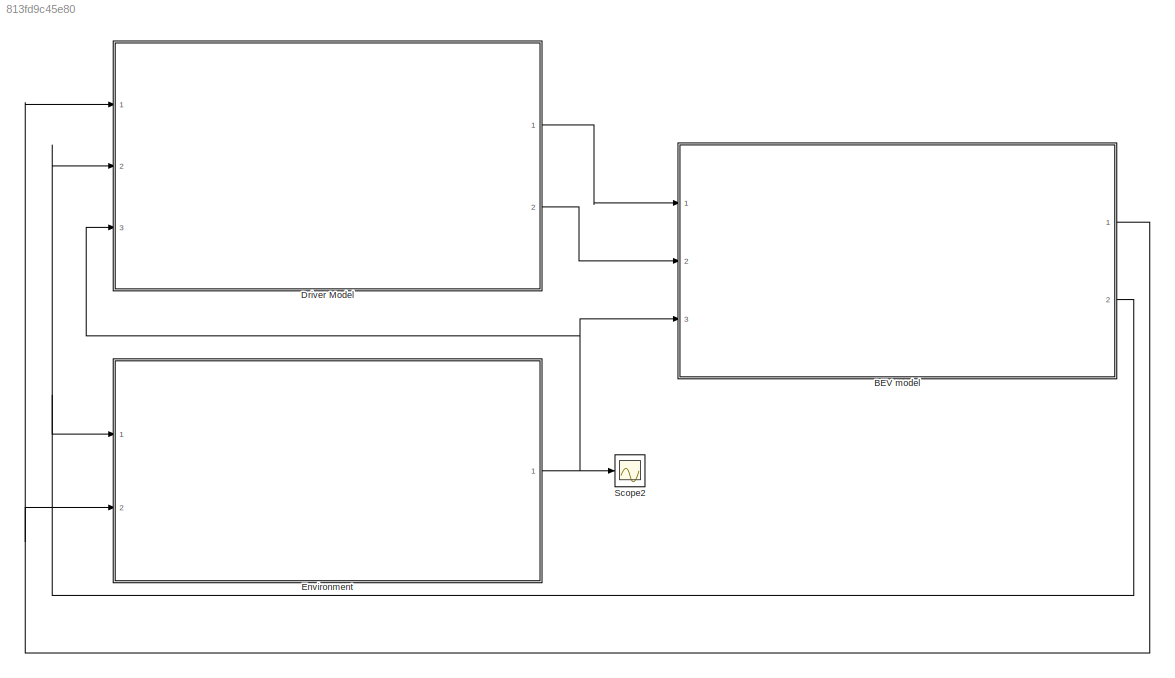
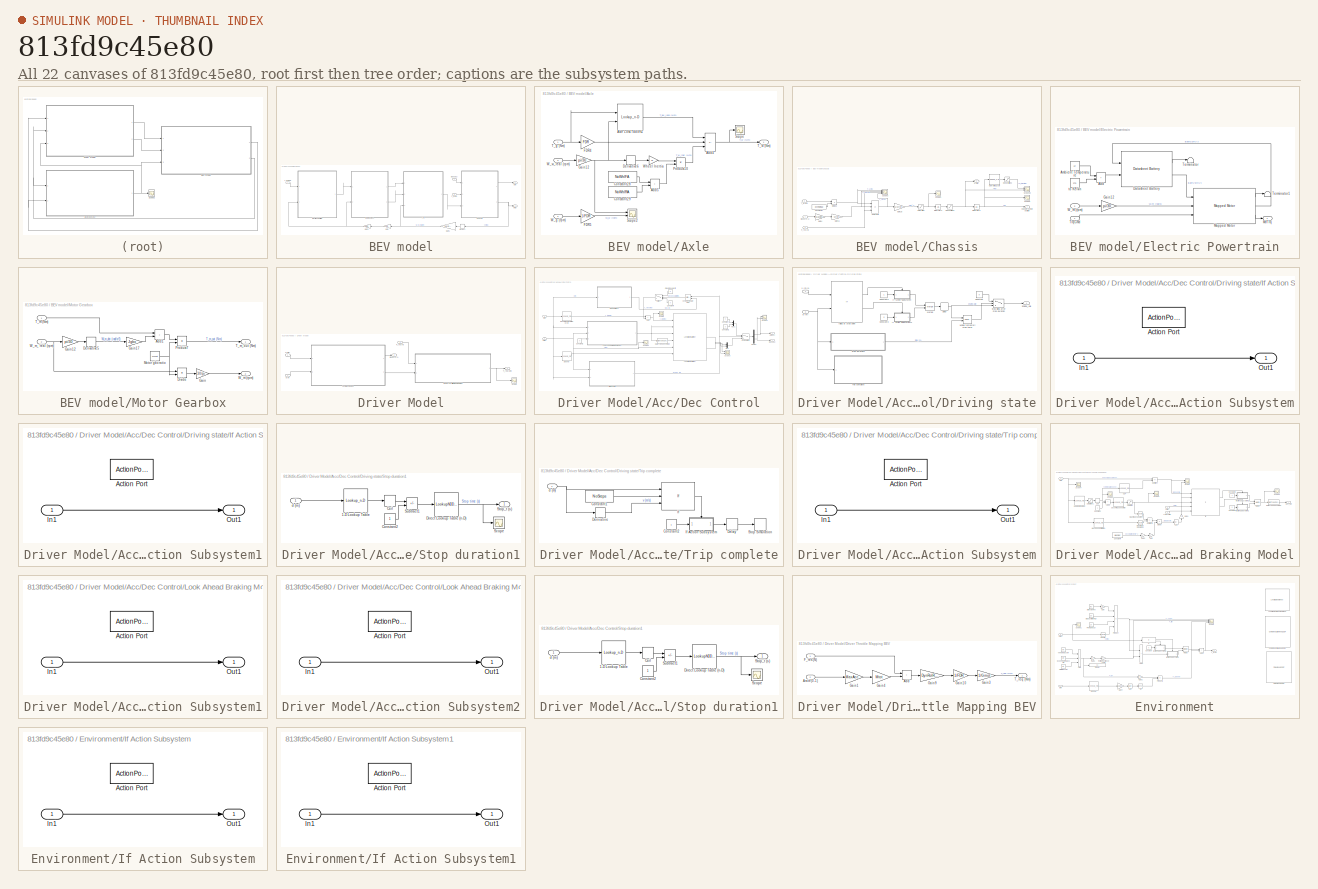
[diagram: thumbnail index - all 22 canvases of the model, root first then tree order]
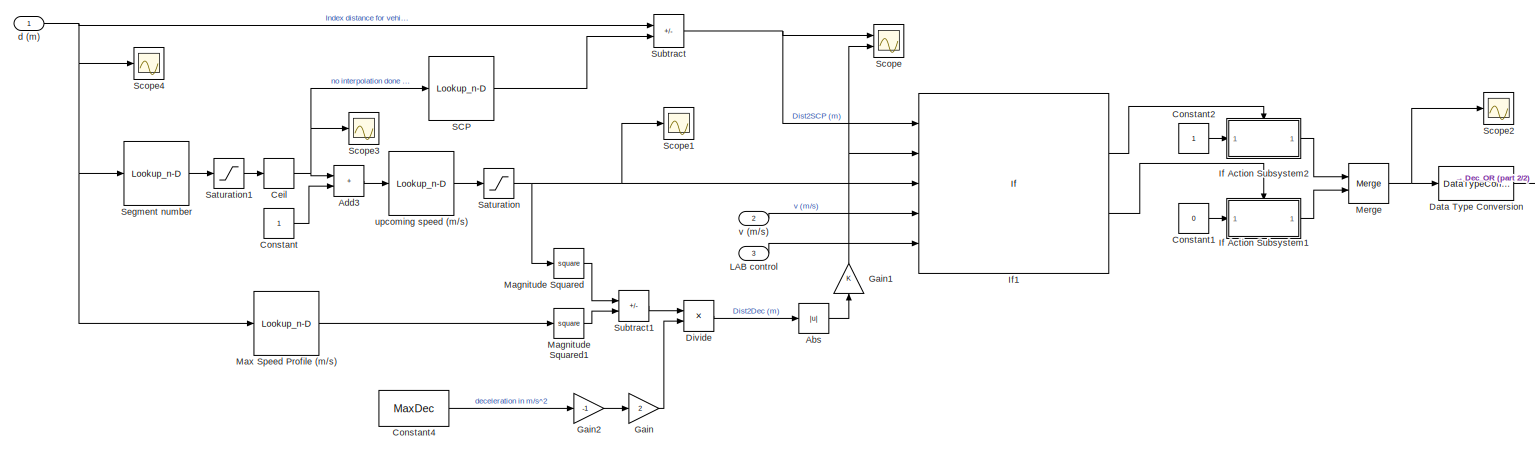
[diagram: Driver Model/Acc/Dec Control/Look Ahead Braking Model - part 1/2, most of the canvas]
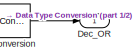
[diagram: Driver Model/Acc/Dec Control/Look Ahead Braking Model - part 2/2, middle right region]
MODEL slx_813fd9c45e80
KIND model
CONFIG AbsTol = auto
CONFIG EnableMultiTasking = off
CONFIG FixedStep = 0.1
CONFIG MaxStep = auto
CONFIG MinStep = auto
CONFIG RelTol = 1e-3
CONFIG SampleTimeConstraint = Unconstrained
CONFIG SolverName = FixedStepAuto
CONFIG StartTime = 0.0
CONFIG StopTime = 5000
BLOCK [SubSystem] BEV model
  Ports = [3, 2]
  RequestExecContextInheritance = off
BLOCK [SubSystem] BEV model/Axle
  Ports = [3, 1]
  RequestExecContextInheritance = off
BLOCK [Sum] BEV model/Axle/Add4
  IconShape = rectangular
  Inputs = -++
  Ports = [3, 1]
BLOCK [Sum] BEV model/Axle/Add5
  IconShape = rectangular
  Ports = [2, 1]
BLOCK [Lookup_n-D] BEV model/Axle/Axle Loss Tables1
  BreakpointsForDimension1 = ALInpTor
  BreakpointsForDimension2 = ALInpSpeed
  BreakpointsForDimension3 = GNo
  InputPortMap = u0,u1
  InternalRulePriority = Speed
  InterpMethod = Linear Lagrange
  Ports = [2, 1]
  RndMeth = Simplest
  Table = ALTableVal
BLOCK [Constant] BEV model/Axle/Constant28
  Value = NoWhlFA
BLOCK [Constant] BEV model/Axle/Constant29
  Value = NoWhlRA
BLOCK [Derivative] BEV model/Axle/Derivative6
BLOCK [Gain] BEV model/Axle/FDR4
  Gain = FDR
BLOCK [Gain] BEV model/Axle/FDR5
  Gain = 1/FDR
BLOCK [Gain] BEV model/Axle/Gain12
  Gain = pi/30
BLOCK [Product] BEV model/Axle/Product10
  Ports = [2, 1]
BLOCK [Scope] BEV model/Axle/Scope
  Floating = off
  NumInputPorts = 1
  Ports = [1]
  ScopeSpecificationString = Simulink.scopes.TimeScopeBlockCfg('CurrentConfiguration', extmgr.ConfigurationSet(extmgr.Configuration('Core','General UI',true),extmgr.Configuration('Core','Source UI',true),extmgr.Configuration('Sources','WiredSimulink',true,'DataLoggingVariableName','ScopeData11'),extmgr.Configuration('Visuals','Time Domain',true,'SerializedDisplays',{struct('MinYLimReal','-212034.84163','MaxYLimReal','170788.4...<+1477ch>
BLOCK [Scope] BEV model/Axle/Scope2
  Floating = off
  NumInputPorts = 2
  Ports = [2]
  ScopeSpecificationString = Simulink.scopes.TimeScopeBlockCfg('CurrentConfiguration', extmgr.ConfigurationSet(extmgr.Configuration('Core','General UI',true),extmgr.Configuration('Core','Source UI',true),extmgr.Configuration('Sources','WiredSimulink',true,'DataLoggingVariableName','ScopeData6'),extmgr.Configuration('Visuals','Time Domain',true,'SerializedDisplays',{struct('MinYLimReal','-58.24303','MaxYLimReal','524.18726','Y...<+1517ch>
BLOCK [Inport] BEV model/Axle/T_g (Nm)
BLOCK [Outport] BEV model/Axle/T_w (Nm)
BLOCK [Inport] BEV model/Axle/W_g (rpm)
  Port = 2
BLOCK [Inport] BEV model/Axle/W_w_real (rpm)
  Port = 3
BLOCK [Gain] BEV model/Axle/Wheel Inertia
  Gain = Jk
BLOCK [Inport] BEV model/Bpos (0-1)
  Port = 2
BLOCK [SubSystem] BEV model/Chassis
  Ports = [3, 2]
  RequestExecContextInheritance = off
BLOCK [Inport] BEV model/Chassis/Bpos (0-1)
BLOCK [Constant] BEV model/Chassis/Constant27
  Value = DynRolRad
BLOCK [Product] BEV model/Chassis/Divide2
  Inputs = */
  Ports = [2, 1]
BLOCK [Inport] BEV model/Chassis/F_res (N)
  Port = 2
BLOCK [Gain] BEV model/Chassis/Gain11
  Gain = -Mtot
BLOCK [Gain] BEV model/Chassis/Gain18
  Gain = 1/Mtot
BLOCK [Gain] BEV model/Chassis/Gain4
  Gain = MaxDec
BLOCK [Outport] BEV model/Chassis/Index for vehicle position
BLOCK [Integrator] BEV model/Chassis/Integrator2
  ContinuousStateAttributes = 'acceleration'
  Ports = [1, 1]
BLOCK [Integrator] BEV model/Chassis/Integrator5
  ContinuousStateAttributes = 'velocity'
  Ports = [1, 1]
BLOCK [Saturate] BEV model/Chassis/Only positive1
  LowerLimit = 0
  UpperLimit = inf
BLOCK [Saturate] BEV model/Chassis/Only positive2
  LowerLimit = 0
  UpperLimit = inf
BLOCK [Lookup_n-D] BEV model/Chassis/Operating Cycle
  BreakpointsForDimension1 = Dist
  BreakpointsForDimension2 = G1Inprpm
  InputPortMap = u0
  InternalRulePriority = Speed
  InterpMethod = Linear Lagrange
  NumberOfTableDimensions = 1
  Ports = [1, 1]
  RndMeth = Simplest
  Table = MaxSpeedProfile
BLOCK [Saturate] BEV model/Chassis/Saturation
  LowerLimit = -(MaxDec)
  UpperLimit = MaxAcc
BLOCK [Scope] BEV model/Chassis/Scope1
  Floating = off
  NumInputPorts = 1
  Ports = [1]
  ScopeSpecificationString = Simulink.scopes.TimeScopeBlockCfg('CurrentConfiguration', extmgr.ConfigurationSet(extmgr.Configuration('Core','General UI',true),extmgr.Configuration('Core','Source UI',true),extmgr.Configuration('Sources','WiredSimulink',true,'DataLoggingVariableName','ScopeData2'),extmgr.Configuration('Visuals','Time Domain',true,'SerializedDisplays',{struct('MinYLimReal','-1.875','MaxYLimReal','1.875','YLabelRe...<+1463ch>
BLOCK [Scope] BEV model/Chassis/Scope3
  Floating = off
  NumInputPorts = 4
  Ports = [4]
  ScopeSpecificationString = Simulink.scopes.TimeScopeBlockCfg('CurrentConfiguration', extmgr.ConfigurationSet(extmgr.Configuration('Core','General UI',true),extmgr.Configuration('Core','Source UI',true),extmgr.Configuration('Sources','WiredSimulink',true,'DataLoggingVariableName','ScopeData5'),extmgr.Configuration('Visuals','Time Domain',true,'SerializedDisplays',{struct('MinYLimReal','-199477.74057','MaxYLimReal','53849.764...<+1607ch>
BLOCK [Scope] BEV model/Chassis/Scope30
  Floating = off
  NumInputPorts = 2
  Ports = [2]
  ScopeSpecificationString = Simulink.scopes.TimeScopeBlockCfg('CurrentConfiguration', extmgr.ConfigurationSet(extmgr.Configuration('Core','General UI',true),extmgr.Configuration('Core','Source UI',true),extmgr.Configuration('Sources','WiredSimulink',true,'DataLoggingVariableName','ScopeData16'),extmgr.Configuration('Visuals','Time Domain',true,'SerializedDisplays',{struct('MinYLimReal','-1.04167','MaxYLimReal','9.375','YLabe...<+1490ch>
BLOCK [Scope] BEV model/Chassis/Scope5
  Floating = off
  NumInputPorts = 1
  Ports = [1]
  ScopeSpecificationString = Simulink.scopes.TimeScopeBlockCfg('CurrentConfiguration', extmgr.ConfigurationSet(extmgr.Configuration('Core','General UI',true),extmgr.Configuration('Core','Source UI',true),extmgr.Configuration('Sources','WiredSimulink',true,'DataLoggingVariableName','ScopeData2'),extmgr.Configuration('Visuals','Time Domain',true,'SerializedDisplays',{struct('MinYLimReal','-0.00675','MaxYLimReal','0.06074','YLab...<+1460ch>
BLOCK [Sum] BEV model/Chassis/Subtract8
  IconShape = rectangular
  Inputs = ++-
  Ports = [3, 1]
BLOCK [Inport] BEV model/Chassis/T_w (Nm)
  Port = 3
BLOCK [Outport] BEV model/Chassis/v (m//s)
  NameLocation = top
  Port = 2
BLOCK [SubSystem] BEV model/Electric Powertrain
  Ports = [2, 1]
  RequestExecContextInheritance = off
BLOCK [Sum] BEV model/Electric Powertrain/Add
  IconShape = rectangular
  Ports = [2, 1]
BLOCK [Constant] BEV model/Electric Powertrain/Ambient Temperature
  Value = 27
BLOCK [Reference] BEV model/Electric Powertrain/Datasheet Battery  REF=autolibdatasheetbattery/Datasheet Battery
  Ports = [2, 2]
  SourceBlock = autolibdatasheetbattery/Datasheet Battery
  SourceProductBaseCode = PW
  SourceType = Datasheet Battery
BLOCK [Gain] BEV model/Electric Powertrain/Gain12
  Gain = pi/30
BLOCK [Reference] BEV model/Electric Powertrain/Mapped Motor  REF=autolibmappedmotor/Mapped Motor
  Ports = [3, 3]
  SourceBlock = autolibmappedmotor/Mapped Motor
  SourceProductBaseCode = PW,MT,UV,VE,VP
  SourceType = MappedMotor
BLOCK [Outport] BEV model/Electric Powertrain/MtrTrq
BLOCK [Terminator] BEV model/Electric Powertrain/Terminator
BLOCK [Terminator] BEV model/Electric Powertrain/Terminator1
BLOCK [Inport] BEV model/Electric Powertrain/TrqCmd
BLOCK [Inport] BEV model/Electric Powertrain/W_m (rpm)
  NameLocation = top
  Port = 2
BLOCK [Constant] BEV model/Electric Powertrain/to Kelvin
  Value = 273
BLOCK [Inport] BEV model/F_res (N)
  Port = 3
BLOCK [Gain] BEV model/Gain
  Gain = FDR
  NameLocation = top
BLOCK [Gain] BEV model/Gain1
  Gain = 30/(pi*DynRolRad)
  NameLocation = top
BLOCK [Gain] BEV model/Gain2
  Gain = Gmot
  NameLocation = top
BLOCK [Memory] BEV model/Memory1
  NameLocation = top
BLOCK [SubSystem] BEV model/Motor Gearbox
  Ports = [2, 2]
  RequestExecContextInheritance = off
BLOCK [Sum] BEV model/Motor Gearbox/Add1
  IconShape = rectangular
  Ports = [2, 1]
BLOCK [Derivative] BEV model/Motor Gearbox/Derivative5
BLOCK [Product] BEV model/Motor Gearbox/Divide
  Inputs = */
  Ports = [2, 1]
BLOCK [Gain] BEV model/Motor Gearbox/Gain
  Gain = 30/pi
BLOCK [Gain] BEV model/Motor Gearbox/Gain12
  Gain = pi/30
BLOCK [Gain] BEV model/Motor Gearbox/Gain17
  Gain = Jgbx
BLOCK [Constant] BEV model/Motor Gearbox/Motor gbx ratio
  Value = Gmot
BLOCK [Product] BEV model/Motor Gearbox/Product7
  Ports = [2, 1]
BLOCK [Inport] BEV model/Motor Gearbox/T_m (Nm)
BLOCK [Outport] BEV model/Motor Gearbox/T_m_out (Nm)
BLOCK [Outport] BEV model/Motor Gearbox/W_m (rpm)
  Port = 2
BLOCK [Inport] BEV model/Motor Gearbox/W_m_ real (rpm)
  Port = 2
BLOCK [Inport] BEV model/T_req (Nm)
BLOCK [Outport] BEV model/d (m)
  Port = 2
BLOCK [Outport] BEV model/v (m//s)
BLOCK [SubSystem] Driver Model
  Ports = [3, 2]
  RequestExecContextInheritance = off
BLOCK [SubSystem] Driver Model/Acc//Dec Control
  Ports = [2, 2]
  RequestExecContextInheritance = off
BLOCK [Sum] Driver Model/Acc//Dec Control/Add
  IconShape = rectangular
  Ports = [2, 1]
BLOCK [Outport] Driver Model/Acc//Dec Control/Arate(0-1)
  Port = 2
BLOCK [Outport] Driver Model/Acc//Dec Control/Bpos (0-1)
BLOCK [Constant] Driver Model/Acc//Dec Control/Constant
  Value = 0
BLOCK [Constant] Driver Model/Acc//Dec Control/Constant1
  Value = 0
BLOCK [Constant] Driver Model/Acc//Dec Control/Constant2
  Value = 0
BLOCK [Constant] Driver Model/Acc//Dec Control/Constant4
  Commented = on
  NameLocation = top
  Value = 0
BLOCK [Constant] Driver Model/Acc//Dec Control/Creeping Velocity
  Commented = on
  NameLocation = top
  Value = 5
BLOCK [DataTypeConversion] Driver Model/Acc//Dec Control/Data Type Conversion
  OutDataTypeStr = double
  RndMeth = Floor
  SaturateOnIntegerOverflow = off
BLOCK [Demux] Driver Model/Acc//Dec Control/Demux
  Outputs = 2
  Ports = [1, 2]
BLOCK [SubSystem] Driver Model/Acc//Dec Control/Driving state
  Ports = [2, 1]
  RequestExecContextInheritance = off
BLOCK [Constant] Driver Model/Acc//Dec Control/Driving state/Constant
  Value = 0
BLOCK [Constant] Driver Model/Acc//Dec Control/Driving state/Constant2
BLOCK [Constant] Driver Model/Acc//Dec Control/Driving state/Constant3
  Value = 0
BLOCK [Delay] Driver Model/Acc//Dec Control/Driving state/Delay
  DelayLength = 1
  InputPortMap = u0
  Ports = [1, 1]
BLOCK [Outport] Driver Model/Acc//Dec Control/Driving state/Engine_Idle
BLOCK [If] Driver Model/Acc//Dec Control/Driving state/Idling at stop point
  IfExpression = u1 == 0 & u2 > 0
  NumInputs = 2
  Ports = [2, 2]
BLOCK [SubSystem] Driver Model/Acc//Dec Control/Driving state/If Action Subsystem
  Ports = [1, 1, 0, 0, 0, 0, 0, 1]
  RequestExecContextInheritance = off
  TreatAsAtomicUnit = on
BLOCK [ActionPort] Driver Model/Acc//Dec Control/Driving state/If Action Subsystem/Action Port
  ActionPortLabel = if(u1 == 0 & u2 > 0)
BLOCK [Inport] Driver Model/Acc//Dec Control/Driving state/If Action Subsystem/In1
BLOCK [Outport] Driver Model/Acc//Dec Control/Driving state/If Action Subsystem/Out1
BLOCK [SubSystem] Driver Model/Acc//Dec Control/Driving state/If Action Subsystem1
  Ports = [1, 1, 0, 0, 0, 0, 0, 1]
  RequestExecContextInheritance = off
  TreatAsAtomicUnit = on
BLOCK [ActionPort] Driver Model/Acc//Dec Control/Driving state/If Action Subsystem1/Action Port
  ActionPortLabel = else
BLOCK [Inport] Driver Model/Acc//Dec Control/Driving state/If Action Subsystem1/In1
BLOCK [Outport] Driver Model/Acc//Dec Control/Driving state/If Action Subsystem1/Out1
BLOCK [Merge] Driver Model/Acc//Dec Control/Driving state/Merge
  Ports = [2, 1]
BLOCK [SubSystem] Driver Model/Acc//Dec Control/Driving state/Stop duration1
  Ports = [1, 1]
  RequestExecContextInheritance = off
BLOCK [Lookup_n-D] Driver Model/Acc//Dec Control/Driving state/Stop duration1/1-D Lookup Table
  BreakpointsForDimension1 = Stoptimes(:,1)
  InputPortMap = u0
  InternalRulePriority = Speed
  NumberOfTableDimensions = 1
  Ports = [1, 1]
  RndMeth = Simplest
  Table = 1:length(Stoptimes)
BLOCK [Rounding] Driver Model/Acc//Dec Control/Driving state/Stop duration1/Ceil
  Operator = ceil
BLOCK [Constant] Driver Model/Acc//Dec Control/Driving state/Stop duration1/Constant2
BLOCK [LookupNDDirect] Driver Model/Acc//Dec Control/Driving state/Stop duration1/Direct Lookup Table (n-D)
  NumberOfTableDimensions = 1
  Ports = [1, 1]
  Table = Stoptimes(:,2)
BLOCK [Scope] Driver Model/Acc//Dec Control/Driving state/Stop duration1/Scope
  Floating = off
  NumInputPorts = 1
  Ports = [1]
  ScopeSpecificationString = Simulink.scopes.TimeScopeBlockCfg('CurrentConfiguration', extmgr.ConfigurationSet(extmgr.Configuration('Core','General UI',true),extmgr.Configuration('Core','Source UI',true),extmgr.Configuration('Sources','WiredSimulink',true,'DataLoggingVariableName','ScopeData1'),extmgr.Configuration('Visuals','Time Domain',true,'SerializedDisplays',{struct('MinYLimReal','4.00000','MaxYLimReal','6.00000','YLabe...<+1399ch>
BLOCK [Outport] Driver Model/Acc//Dec Control/Driving state/Stop duration1/Stop_t (s)
BLOCK [Sum] Driver Model/Acc//Dec Control/Driving state/Stop duration1/Subtract1
  IconShape = rectangular
  Inputs = +-
  Ports = [2, 1]
BLOCK [Inport] Driver Model/Acc//Dec Control/Driving state/Stop duration1/d (m)
BLOCK [Switch] Driver Model/Acc//Dec Control/Driving state/Stop idling after stop duration
  Criteria = u2 > Threshold
  InputSameDT = off
  SaturateOnIntegerOverflow = off
BLOCK [SubSystem] Driver Model/Acc//Dec Control/Driving state/Trip complete
  Ports = [1]
  RequestExecContextInheritance = off
BLOCK [Constant] Driver Model/Acc//Dec Control/Driving state/Trip complete/Constant1
  Value = NoSteps
BLOCK [Constant] Driver Model/Acc//Dec Control/Driving state/Trip complete/Constant2
BLOCK [Delay] Driver Model/Acc//Dec Control/Driving state/Trip complete/Delay
  DelayLength = 1
  InputPortMap = u0
  Ports = [1, 1]
BLOCK [Derivative] Driver Model/Acc//Dec Control/Driving state/Trip complete/Derivative
BLOCK [If] Driver Model/Acc//Dec Control/Driving state/Trip complete/If
  IfExpression = u1 > u2 & u3 ==0
  NumInputs = 3
  Ports = [3, 1]
  ShowElse = off
BLOCK [SubSystem] Driver Model/Acc//Dec Control/Driving state/Trip complete/If Action Subsystem
  Ports = [1, 1, 0, 0, 0, 0, 0, 1]
  RequestExecContextInheritance = off
  TreatAsAtomicUnit = on
BLOCK [ActionPort] Driver Model/Acc//Dec Control/Driving state/Trip complete/If Action Subsystem/Action Port
  ActionPortLabel = if(u1 > u2 & u3 ==0)
BLOCK [Inport] Driver Model/Acc//Dec Control/Driving state/Trip complete/If Action Subsystem/In1
BLOCK [Outport] Driver Model/Acc//Dec Control/Driving state/Trip complete/If Action Subsystem/Out1
BLOCK [Stop] Driver Model/Acc//Dec Control/Driving state/Trip complete/Stop Simulation
BLOCK [Inport] Driver Model/Acc//Dec Control/Driving state/Trip complete/d (m)
BLOCK [VariableTransportDelay] Driver Model/Acc//Dec Control/Driving state/Vehicle temporary stop timer
  MaximumDelay = 10
  NameLocation = top
  Ports = [2, 1]
  VariableDelayType = Variable transport delay
BLOCK [Inport] Driver Model/Acc//Dec Control/Driving state/d (m)
  Port = 2
BLOCK [Inport] Driver Model/Acc//Dec Control/Driving state/v (m//s)
BLOCK [Switch] Driver Model/Acc//Dec Control/Engine Idling
  Criteria = u2 > Threshold
  InputSameDT = off
  SaturateOnIntegerOverflow = off
BLOCK [Lookup_n-D] Driver Model/Acc//Dec Control/Generated Operating Cycle
  BreakpointsForDimension1 = Dist
  BreakpointsForDimension2 = G1Inprpm
  InputPortMap = u0
  InternalRulePriority = Speed
  InterpMethod = Linear Lagrange
  NumberOfTableDimensions = 1
  Ports = [1, 1]
  RndMeth = Simplest
  Table = MaxSpeedProfile
BLOCK [Reference] Driver Model/Acc//Dec Control/Longitudinal Driver  REF=autolibshared/Longitudinal Driver
  Ports = [6, 3]
  SourceBlock = autolibshared/Longitudinal Driver
  SourceProductBaseCode = PW,MT,UV,VE,VP
  SourceType = Longitudinal Driver
BLOCK [SubSystem] Driver Model/Acc//Dec Control/Look Ahead Braking Model
  Ports = [3, 1]
  RequestExecContextInheritance = off
BLOCK [Abs] Driver Model/Acc//Dec Control/Look Ahead Braking Model/Abs
  SaturateOnIntegerOverflow = off
BLOCK [Sum] Driver Model/Acc//Dec Control/Look Ahead Braking Model/Add3
  IconShape = rectangular
  Ports = [2, 1]
BLOCK [Rounding] Driver Model/Acc//Dec Control/Look Ahead Braking Model/Ceil
  Operator = ceil
BLOCK [Constant] Driver Model/Acc//Dec Control/Look Ahead Braking Model/Constant
BLOCK [Constant] Driver Model/Acc//Dec Control/Look Ahead Braking Model/Constant1
  Value = 0
BLOCK [Constant] Driver Model/Acc//Dec Control/Look Ahead Braking Model/Constant2
BLOCK [Constant] Driver Model/Acc//Dec Control/Look Ahead Braking Model/Constant4
  Value = MaxDec
BLOCK [DataTypeConversion] Driver Model/Acc//Dec Control/Look Ahead Braking Model/Data Type Conversion
  OutDataTypeStr = boolean
  RndMeth = Floor
  SaturateOnIntegerOverflow = off
BLOCK [Outport] Driver Model/Acc//Dec Control/Look Ahead Braking Model/Dec_OR
BLOCK [Product] Driver Model/Acc//Dec Control/Look Ahead Braking Model/Divide
  Inputs = */
  Ports = [2, 1]
BLOCK [Gain] Driver Model/Acc//Dec Control/Look Ahead Braking Model/Gain
  Gain = 2
BLOCK [Gain] Driver Model/Acc//Dec Control/Look Ahead Braking Model/Gain1
  NameLocation = right
BLOCK [Gain] Driver Model/Acc//Dec Control/Look Ahead Braking Model/Gain2
  Gain = -1
BLOCK [SubSystem] Driver Model/Acc//Dec Control/Look Ahead Braking Model/If Action Subsystem1
  Ports = [1, 1, 0, 0, 0, 0, 0, 1]
  RequestExecContextInheritance = off
  TreatAsAtomicUnit = on
BLOCK [ActionPort] Driver Model/Acc//Dec Control/Look Ahead Braking Model/If Action Subsystem1/Action Port
  ActionPortLabel = else
BLOCK [Inport] Driver Model/Acc//Dec Control/Look Ahead Braking Model/If Action Subsystem1/In1
BLOCK [Outport] Driver Model/Acc//Dec Control/Look Ahead Braking Model/If Action Subsystem1/Out1
BLOCK [SubSystem] Driver Model/Acc//Dec Control/Look Ahead Braking Model/If Action Subsystem2
  Ports = [1, 1, 0, 0, 0, 0, 0, 1]
  RequestExecContextInheritance = off
  TreatAsAtomicUnit = on
BLOCK [ActionPort] Driver Model/Acc//Dec Control/Look Ahead Braking Model/If Action Subsystem2/Action Port
  ActionPortLabel = if(u1 <= u2 & u4 > u3 & u5 == 0)
BLOCK [Inport] Driver Model/Acc//Dec Control/Look Ahead Braking Model/If Action Subsystem2/In1
BLOCK [Outport] Driver Model/Acc//Dec Control/Look Ahead Braking Model/If Action Subsystem2/Out1
BLOCK [If] Driver Model/Acc//Dec Control/Look Ahead Braking Model/If1
  IfExpression = u1 <= u2 & u4 > u3 & u5 == 0
  NumInputs = 5
  Ports = [5, 2]
BLOCK [Inport] Driver Model/Acc//Dec Control/Look Ahead Braking Model/LAB control
  Port = 3
BLOCK [Math] Driver Model/Acc//Dec Control/Look Ahead Braking Model/Magnitude Squared
  Operator = square
  Ports = [1, 1]
BLOCK [Math] Driver Model/Acc//Dec Control/Look Ahead Braking Model/Magnitude Squared1
  Operator = square
  Ports = [1, 1]
BLOCK [Lookup_n-D] Driver Model/Acc//Dec Control/Look Ahead Braking Model/Max Speed Profile (m//s)
  BreakpointsForDimension1 = Dist
  BreakpointsForDimension2 = G1Inprpm
  InputPortMap = u0
  InternalRulePriority = Speed
  InterpMethod = Linear Lagrange
  NumberOfTableDimensions = 1
  Ports = [1, 1]
  RndMeth = Simplest
  Table = MaxSpeedProfile
BLOCK [Merge] Driver Model/Acc//Dec Control/Look Ahead Braking Model/Merge
  Ports = [2, 1]
BLOCK [Lookup_n-D] Driver Model/Acc//Dec Control/Look Ahead Braking Model/SCP
  BreakpointsForDimension1 = SegNo
  BreakpointsForDimension2 = G1Inprpm
  InputPortMap = u0
  InternalRulePriority = Speed
  InterpMethod = Linear Lagrange
  NumberOfTableDimensions = 1
  Ports = [1, 1]
  RndMeth = Simplest
  Table = CovDist
BLOCK [Saturate] Driver Model/Acc//Dec Control/Look Ahead Braking Model/Saturation
  LowerLimit = 0
  UpperLimit = inf
BLOCK [Saturate] Driver Model/Acc//Dec Control/Look Ahead Braking Model/Saturation1
  LowerLimit = 0
  UpperLimit = inf
BLOCK [Scope] Driver Model/Acc//Dec Control/Look Ahead Braking Model/Scope
  Floating = off
  NumInputPorts = 2
  Ports = [2]
  ScopeSpecificationString = Simulink.scopes.TimeScopeBlockCfg('CurrentConfiguration', extmgr.ConfigurationSet(extmgr.Configuration('Core','General UI',true),extmgr.Configuration('Core','Source UI',true),extmgr.Configuration('Sources','WiredSimulink',true,'DataLoggingVariableName','ScopeData3'),extmgr.Configuration('Visuals','Time Domain',true,'SerializedDisplays',{struct('MinYLimReal','-187.49333','MaxYLimReal','1687.44','YL...<+1458ch>
BLOCK [Scope] Driver Model/Acc//Dec Control/Look Ahead Braking Model/Scope1
  Floating = off
  NumInputPorts = 1
  Ports = [1]
  ScopeSpecificationString = Simulink.scopes.TimeScopeBlockCfg('CurrentConfiguration', extmgr.ConfigurationSet(extmgr.Configuration('Core','General UI',true),extmgr.Configuration('Core','Source UI',true),extmgr.Configuration('Sources','WiredSimulink',true,'DataLoggingVariableName','ScopeData4'),extmgr.Configuration('Visuals','Time Domain',true,'SerializedDisplays',{struct('MinYLimReal','-2.95139','MaxYLimReal','26.5625','YLab...<+1400ch>
BLOCK [Scope] Driver Model/Acc//Dec Control/Look Ahead Braking Model/Scope2
  Floating = off
  NumInputPorts = 1
  Ports = [1]
  ScopeSpecificationString = Simulink.scopes.TimeScopeBlockCfg('CurrentConfiguration', extmgr.ConfigurationSet(extmgr.Configuration('Core','General UI',true),extmgr.Configuration('Core','Source UI',true),extmgr.Configuration('Sources','WiredSimulink',true,'DataLoggingVariableName','ScopeData33'),extmgr.Configuration('Visuals','Time Domain',true,'SerializedDisplays',{struct('MinYLimReal','-0.01244','MaxYLimReal','1.03444','YLa...<+1440ch>
BLOCK [Scope] Driver Model/Acc//Dec Control/Look Ahead Braking Model/Scope3
  Floating = off
  NumInputPorts = 1
  Ports = [1]
  ScopeSpecificationString = Simulink.scopes.TimeScopeBlockCfg('CurrentConfiguration', extmgr.ConfigurationSet(extmgr.Configuration('Core','General UI',true),extmgr.Configuration('Core','Source UI',true),extmgr.Configuration('Sources','WiredSimulink',true,'DataLoggingVariableName','ScopeData5'),extmgr.Configuration('Visuals','Time Domain',true,'SerializedDisplays',{struct('MinYLimReal','-15.5','MaxYLimReal','139.5','YLabelRea...<+1443ch>
BLOCK [Scope] Driver Model/Acc//Dec Control/Look Ahead Braking Model/Scope4
  Floating = off
  NumInputPorts = 1
  Ports = [1]
  ScopeSpecificationString = Simulink.scopes.TimeScopeBlockCfg('CurrentConfiguration', extmgr.ConfigurationSet(extmgr.Configuration('Core','General UI',true),extmgr.Configuration('Core','Source UI',true),extmgr.Configuration('Sources','WiredSimulink',true,'DataLoggingVariableName','ScopeData6'),extmgr.Configuration('Visuals','Time Domain',true,'SerializedDisplays',{struct('MinYLimReal','-7761.10469','MaxYLimReal','69849.94219...<+1491ch>
BLOCK [Lookup_n-D] Driver Model/Acc//Dec Control/Look Ahead Braking Model/Segment number
  BreakpointsForDimension1 = CovDist
  BreakpointsForDimension2 = G1Inprpm
  InputPortMap = u0
  InternalRulePriority = Speed
  InterpMethod = Linear Lagrange
  NumberOfTableDimensions = 1
  Ports = [1, 1]
  RndMeth = Simplest
  Table = SegNo
BLOCK [Sum] Driver Model/Acc//Dec Control/Look Ahead Braking Model/Subtract
  IconShape = rectangular
  Inputs = -+
  Ports = [2, 1]
BLOCK [Sum] Driver Model/Acc//Dec Control/Look Ahead Braking Model/Subtract1
  IconShape = rectangular
  Inputs = +-
  Ports = [2, 1]
BLOCK [Inport] Driver Model/Acc//Dec Control/Look Ahead Braking Model/d (m)
BLOCK [Lookup_n-D] Driver Model/Acc//Dec Control/Look Ahead Braking Model/upcoming speed (m//s)
  BreakpointsForDimension1 = SegNo
  BreakpointsForDimension2 = G1Inprpm
  InputPortMap = u0
  InternalRulePriority = Speed
  InterpMethod = Linear Lagrange
  NumberOfTableDimensions = 1
  Ports = [1, 1]
  RndMeth = Simplest
  Table = SegSPLatinmps
BLOCK [Inport] Driver Model/Acc//Dec Control/Look Ahead Braking Model/v (m//s)
  Port = 2
BLOCK [Mux] Driver Model/Acc//Dec Control/Mux
  DisplayOption = bar
  Inputs = 2
  Ports = [2, 1]
BLOCK [Mux] Driver Model/Acc//Dec Control/Mux1
  DisplayOption = bar
  Inputs = 2
  Ports = [2, 1]
BLOCK [Scope] Driver Model/Acc//Dec Control/Scope
  Floating = off
  NumInputPorts = 1
  Ports = [1]
  ScopeSpecificationString = Simulink.scopes.TimeScopeBlockCfg('CurrentConfiguration', extmgr.ConfigurationSet(extmgr.Configuration('Core','General UI',true),extmgr.Configuration('Core','Source UI',true),extmgr.Configuration('Sources','WiredSimulink',true,'DataLoggingVariableName','ScopeData1'),extmgr.Configuration('Visuals','Time Domain',true,'SerializedDisplays',{struct('MinYLimReal','-2.95139','MaxYLimReal','26.5625','YLab...<+1371ch>
BLOCK [Scope] Driver Model/Acc//Dec Control/Scope1
  Floating = off
  NumInputPorts = 2
  Ports = [2]
  ScopeSpecificationString = Simulink.scopes.TimeScopeBlockCfg('CurrentConfiguration', extmgr.ConfigurationSet(extmgr.Configuration('Core','General UI',true),extmgr.Configuration('Core','Source UI',true),extmgr.Configuration('Sources','WiredSimulink',true,'DataLoggingVariableName','ScopeData1'),extmgr.Configuration('Visuals','Time Domain',true,'SerializedDisplays',{struct('MinYLimReal','-0.125','MaxYLimReal','1.125','YLabelRe...<+1478ch>
BLOCK [Scope] Driver Model/Acc//Dec Control/Scope2
  Floating = off
  NumInputPorts = 1
  Ports = [1]
  ScopeSpecificationString = Simulink.scopes.TimeScopeBlockCfg('CurrentConfiguration', extmgr.ConfigurationSet(extmgr.Configuration('Core','General UI',true),extmgr.Configuration('Core','Source UI',true),extmgr.Configuration('Sources','WiredSimulink',true,'DataLoggingVariableName','ScopeData2'),extmgr.Configuration('Visuals','Time Domain',true,'SerializedDisplays',{struct('MinYLimReal','-2.95863','MaxYLimReal','26.62765','YLa...<+1370ch>
BLOCK [Scope] Driver Model/Acc//Dec Control/Scope3
  Floating = off
  NumInputPorts = 2
  Ports = [2]
  ScopeSpecificationString = Simulink.scopes.TimeScopeBlockCfg('CurrentConfiguration', extmgr.ConfigurationSet(extmgr.Configuration('Core','General UI',true),extmgr.Configuration('Core','Source UI',true),extmgr.Configuration('Sources','WiredSimulink',true,'DataLoggingVariableName','ScopeData3'),extmgr.Configuration('Visuals','Time Domain',true,'SerializedDisplays',{struct('MinYLimReal','-0.125','MaxYLimReal','1.125','YLabelRe...<+1514ch>
BLOCK [Lookup_n-D] Driver Model/Acc//Dec Control/Slope (%)
  BreakpointsForDimension1 = Dist
  InputPortMap = u0
  InternalRulePriority = Speed
  NumberOfTableDimensions = 1
  Ports = [1, 1]
  RndMeth = Simplest
  Table = IntpSlope
BLOCK [SubSystem] Driver Model/Acc//Dec Control/Stop duration1
  Commented = on
  Ports = [1, 1]
  RequestExecContextInheritance = off
BLOCK [Lookup_n-D] Driver Model/Acc//Dec Control/Stop duration1/1-D Lookup Table
  BreakpointsForDimension1 = Stoptimes(:,1)
  InputPortMap = u0
  InternalRulePriority = Speed
  NumberOfTableDimensions = 1
  Ports = [1, 1]
  RndMeth = Simplest
  Table = 1:length(Stoptimes)
BLOCK [Rounding] Driver Model/Acc//Dec Control/Stop duration1/Ceil
  Operator = ceil
BLOCK [Constant] Driver Model/Acc//Dec Control/Stop duration1/Constant2
BLOCK [LookupNDDirect] Driver Model/Acc//Dec Control/Stop duration1/Direct Lookup Table (n-D)
  NumberOfTableDimensions = 1
  Ports = [1, 1]
  Table = Stoptimes(:,2)
BLOCK [Scope] Driver Model/Acc//Dec Control/Stop duration1/Scope
  Floating = off
  NumInputPorts = 1
  Ports = [1]
  ScopeSpecificationString = Simulink.scopes.TimeScopeBlockCfg('CurrentConfiguration', extmgr.ConfigurationSet(extmgr.Configuration('Core','General UI',true),extmgr.Configuration('Core','Source UI',true),extmgr.Configuration('Sources','WiredSimulink',true,'DataLoggingVariableName','ScopeData1'),extmgr.Configuration('Visuals','Time Domain',true,'SerializedDisplays',{struct('MinYLimReal','4.375','MaxYLimReal','10.625','YLabelRe...<+1387ch>
BLOCK [Outport] Driver Model/Acc//Dec Control/Stop duration1/Stop_t (s)
BLOCK [Sum] Driver Model/Acc//Dec Control/Stop duration1/Subtract1
  IconShape = rectangular
  Inputs = +-
  Ports = [2, 1]
BLOCK [Inport] Driver Model/Acc//Dec Control/Stop duration1/d (m)
BLOCK [Switch] Driver Model/Acc//Dec Control/Switch
  Commented = on
  Criteria = u2 > Threshold
  InputSameDT = off
  NameLocation = top
  SaturateOnIntegerOverflow = off
BLOCK [VariableTransportDelay] Driver Model/Acc//Dec Control/Vehicle temporary stop
  Commented = on
  MaximumDelay = 10
  Ports = [2, 1]
  VariableDelayType = Variable transport delay
BLOCK [Inport] Driver Model/Acc//Dec Control/d (m)
  Port = 2
BLOCK [Inport] Driver Model/Acc//Dec Control/v (m//s)
BLOCK [Outport] Driver Model/Bpos (0-1)
  Port = 2
BLOCK [SubSystem] Driver Model/Driver Throttle Mapping BEV
  Ports = [2, 1]
  RequestExecContextInheritance = off
BLOCK [Sum] Driver Model/Driver Throttle Mapping BEV/Add
  IconShape = rectangular
  Ports = [2, 1]
BLOCK [Inport] Driver Model/Driver Throttle Mapping BEV/Arate(0-1)
  Port = 2
BLOCK [Inport] Driver Model/Driver Throttle Mapping BEV/F_res (N)
BLOCK [Gain] Driver Model/Driver Throttle Mapping BEV/Gain1
  Gain = MaxAcc
BLOCK [Gain] Driver Model/Driver Throttle Mapping BEV/Gain10
  Gain = 1/FDR
BLOCK [Gain] Driver Model/Driver Throttle Mapping BEV/Gain3
  Gain = 1/Gmot
BLOCK [Gain] Driver Model/Driver Throttle Mapping BEV/Gain4
  Gain = Mtot
BLOCK [Gain] Driver Model/Driver Throttle Mapping BEV/Gain9
  Gain = DynRolRad
BLOCK [Outport] Driver Model/Driver Throttle Mapping BEV/T_req (Nm)
BLOCK [Inport] Driver Model/F_res (N)
  Port = 3
BLOCK [Scope] Driver Model/Scope
  Floating = off
  NumInputPorts = 1
  Ports = [1]
  ScopeSpecificationString = Simulink.scopes.TimeScopeBlockCfg('CurrentConfiguration', extmgr.ConfigurationSet(extmgr.Configuration('Core','General UI',true),extmgr.Configuration('Core','Source UI',true),extmgr.Configuration('Sources','WiredSimulink',true,'DataLoggingVariableName','ScopeData1'),extmgr.Configuration('Visuals','Time Domain',true,'SerializedDisplays',{struct('MinYLimReal','-77.61807','MaxYLimReal','2185.07148','...<+1427ch>
BLOCK [Outport] Driver Model/T_req (Nm)
BLOCK [Inport] Driver Model/d (m)
  NameLocation = top
  Port = 2
BLOCK [Inport] Driver Model/v (m//s)
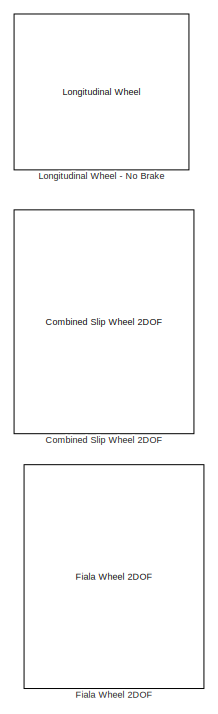
[diagram: Environment - part 1/2, right side, full height]
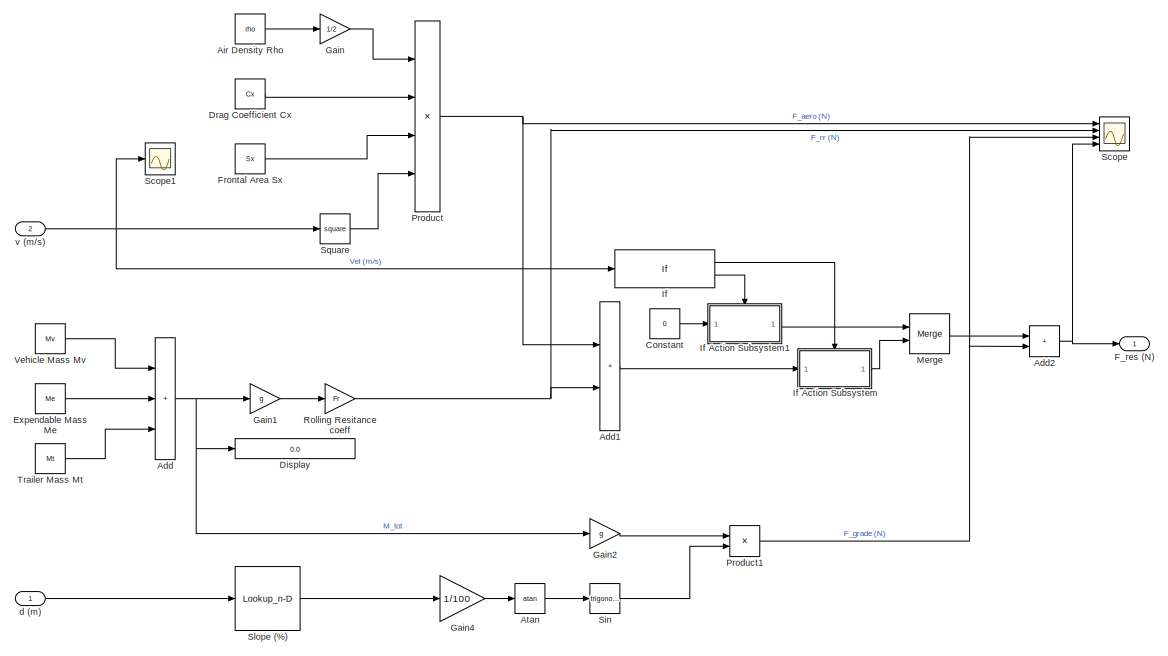
[diagram: Environment - part 2/2, center side, full height]
BLOCK [SubSystem] Environment
  Ports = [2, 1]
  RequestExecContextInheritance = off
BLOCK [Sum] Environment/Add
  IconShape = rectangular
  Inputs = +++
  Ports = [3, 1]
BLOCK [Sum] Environment/Add1
  IconShape = rectangular
  Ports = [2, 1]
BLOCK [Sum] Environment/Add2
  IconShape = rectangular
  Ports = [2, 1]
BLOCK [Constant] Environment/Air Density Rho
  Value = rho
BLOCK [Trigonometry] Environment/Atan
  Operator = atan
  Ports = [1, 1]
BLOCK [Reference] Environment/Combined Slip Wheel 2DOF  REF=vehdynlibtire/Combined Slip Wheel 2DOF
  Commented = on
  Ports = [10, 8]
  SourceBlock = vehdynlibtire/Combined Slip Wheel 2DOF
  SourceProductBaseCode = VE
  SourceType = Combined Slip Wheel 2DOF
BLOCK [Constant] Environment/Constant
  Value = 0
BLOCK [Display] Environment/Display
  Decimation = 1
  Format = long
  Ports = [1]
BLOCK [Constant] Environment/Drag Coefficient Cx
  Value = Cx
BLOCK [Constant] Environment/Expendable Mass Me
  Value = Me
BLOCK [Outport] Environment/F_res (N)
BLOCK [Reference] Environment/Fiala Wheel 2DOF  REF=vehdynlibtire/Fiala Wheel 2DOF
  Commented = on
  Ports = [10, 8]
  SourceBlock = vehdynlibtire/Fiala Wheel 2DOF
  SourceProductBaseCode = VE
  SourceType = Fiala Wheel 2DOF
BLOCK [Constant] Environment/Frontal Area Sx
  Value = Sx
BLOCK [Gain] Environment/Gain
  Gain = 1/2
BLOCK [Gain] Environment/Gain1
  Gain = g
BLOCK [Gain] Environment/Gain2
  Gain = g
BLOCK [Gain] Environment/Gain4
  Gain = 1/100
BLOCK [If] Environment/If
  Ports = [1, 2]
BLOCK [SubSystem] Environment/If Action Subsystem
  Ports = [1, 1, 0, 0, 0, 0, 0, 1]
  RequestExecContextInheritance = off
  TreatAsAtomicUnit = on
BLOCK [ActionPort] Environment/If Action Subsystem/Action Port
  ActionPortLabel = if(u1 > 0)
BLOCK [Inport] Environment/If Action Subsystem/In1
BLOCK [Outport] Environment/If Action Subsystem/Out1
BLOCK [SubSystem] Environment/If Action Subsystem1
  Ports = [1, 1, 0, 0, 0, 0, 0, 1]
  RequestExecContextInheritance = off
  TreatAsAtomicUnit = on
BLOCK [ActionPort] Environment/If Action Subsystem1/Action Port
  ActionPortLabel = else
BLOCK [Inport] Environment/If Action Subsystem1/In1
BLOCK [Outport] Environment/If Action Subsystem1/Out1
BLOCK [Reference] Environment/Longitudinal Wheel - No Brake  REF=autolibshared/Longitudinal Wheel
  Commented = on
  Ports = [3, 3]
  SourceBlock = autolibshared/Longitudinal Wheel
  SourceProductBaseCode = PW,MT,UV,VE,VP
  SourceType = Longitudinal Wheel
BLOCK [Merge] Environment/Merge
  Ports = [2, 1]
BLOCK [Product] Environment/Product
  Inputs = 4
  Ports = [4, 1]
BLOCK [Product] Environment/Product1
  Ports = [2, 1]
BLOCK [Gain] Environment/Rolling Resitance coeff
  Gain = Fr
BLOCK [Scope] Environment/Scope
  Floating = off
  NumInputPorts = 4
  Ports = [4]
  ScopeSpecificationString = Simulink.scopes.TimeScopeBlockCfg('CurrentConfiguration', extmgr.ConfigurationSet(extmgr.Configuration('Core','General UI',true),extmgr.Configuration('Core','Source UI',true),extmgr.Configuration('Sources','WiredSimulink',true,'DataLoggingVariableName','ScopeData16'),extmgr.Configuration('Visuals','Time Domain',true,'SerializedDisplays',{struct('MinYLimReal','-2612.93414','MaxYLimReal','1142.33781...<+1612ch>
BLOCK [Scope] Environment/Scope1
  Floating = off
  NumInputPorts = 1
  Ports = [1]
  ScopeSpecificationString = Simulink.scopes.TimeScopeBlockCfg('CurrentConfiguration', extmgr.ConfigurationSet(extmgr.Configuration('Core','General UI',true),extmgr.Configuration('Core','Source UI',true),extmgr.Configuration('Sources','WiredSimulink',true,'DataLoggingVariableName','ScopeData10'),extmgr.Configuration('Visuals','Time Domain',true,'SerializedDisplays',{struct('MinYLimReal','-1.15217','MaxYLimReal','10.36951','YL...<+1417ch>
BLOCK [Trigonometry] Environment/Sin
  Ports = [1, 1]
BLOCK [Lookup_n-D] Environment/Slope (%)
  BreakpointsForDimension1 = Dist
  InputPortMap = u0
  InternalRulePriority = Speed
  NumberOfTableDimensions = 1
  Ports = [1, 1]
  RndMeth = Simplest
  Table = IntpSlope
BLOCK [Math] Environment/Square
  Operator = square
  Ports = [1, 1]
BLOCK [Constant] Environment/Trailer Mass Mt
  Value = Mt
BLOCK [Constant] Environment/Vehicle Mass Mv
  Value = Mv
BLOCK [Inport] Environment/d (m)
BLOCK [Inport] Environment/v (m//s)
  Port = 2
BLOCK [Scope] Scope2
  Floating = off
  NumInputPorts = 1
  Ports = [1]
  ScopeSpecificationString = Simulink.scopes.TimeScopeBlockCfg('CurrentConfiguration', extmgr.ConfigurationSet(extmgr.Configuration('Core','General UI',true),extmgr.Configuration('Core','Source UI',true),extmgr.Configuration('Sources','WiredSimulink',true,'DataLoggingVariableName','ScopeData7'),extmgr.Configuration('Visuals','Time Domain',true,'SerializedDisplays',{struct('MinYLimReal','-2690.0804','MaxYLimReal','-690.0804','...<+1457ch>
NET BEV model/Axle/Add4:1 -> BEV model/Axle/Scope:1, BEV model/Axle/T_w (Nm):1
LINE BEV model/Axle/Add5:1 -> BEV model/Axle/Product10:2
LINE BEV model/Axle/Axle Loss Tables1:1 -> BEV model/Axle/Add4:1
LINE BEV model/Axle/Constant28:1 -> BEV model/Axle/Add5:1
LINE BEV model/Axle/Constant29:1 -> BEV model/Axle/Add5:2
LINE BEV model/Axle/Derivative6:1 -> BEV model/Axle/Wheel Inertia:1
LINE BEV model/Axle/FDR4:1 -> BEV model/Axle/Add4:2
LINE BEV model/Axle/FDR5:1 -> BEV model/Axle/Scope2:2
NET BEV model/Axle/Gain12:1 -> BEV model/Axle/Axle Loss Tables1:2, BEV model/Axle/Derivative6:1, BEV model/Axle/Scope2:1
LINE BEV model/Axle/Product10:1 -> BEV model/Axle/Add4:3
NET BEV model/Axle/T_g (Nm):1 -> BEV model/Axle/Axle Loss Tables1:1, BEV model/Axle/FDR4:1
LINE BEV model/Axle/W_g (rpm):1 -> BEV model/Axle/FDR5:1
LINE BEV model/Axle/W_w_real (rpm):1 -> BEV model/Axle/Gain12:1
LINE BEV model/Axle/Wheel Inertia:1 -> BEV model/Axle/Product10:1
LINE BEV model/Axle:1 -> BEV model/Chassis:3
LINE BEV model/Bpos (0-1):1 -> BEV model/Chassis:1
LINE BEV model/Chassis/Bpos (0-1):1 -> BEV model/Chassis/Gain4:1
LINE BEV model/Chassis/Constant27:1 -> BEV model/Chassis/Divide2:2
NET BEV model/Chassis/Divide2:1 -> BEV model/Chassis/Scope3:1, BEV model/Chassis/Subtract8:1
NET BEV model/Chassis/F_res (N):1 -> BEV model/Chassis/Scope3:3, BEV model/Chassis/Subtract8:3
NET BEV model/Chassis/Gain11:1 -> BEV model/Chassis/Scope3:2, BEV model/Chassis/Subtract8:2
LINE BEV model/Chassis/Gain18:1 -> BEV model/Chassis/Saturation:1
LINE BEV model/Chassis/Gain4:1 -> BEV model/Chassis/Gain11:1
LINE BEV model/Chassis/Integrator2:1 -> BEV model/Chassis/Only positive1:1
NET BEV model/Chassis/Integrator5:1 -> BEV model/Chassis/Index for vehicle position:1, BEV model/Chassis/Operating Cycle:1, BEV model/Chassis/Scope5:1
NET BEV model/Chassis/Only positive1:1 -> BEV model/Chassis/Integrator5:1, BEV model/Chassis/Scope30:2, BEV model/Chassis/v (m//s):1
LINE BEV model/Chassis/Only positive2:1 -> BEV model/Chassis/Scope30:1
LINE BEV model/Chassis/Operating Cycle:1 -> BEV model/Chassis/Only positive2:1
NET BEV model/Chassis/Saturation:1 -> BEV model/Chassis/Integrator2:1, BEV model/Chassis/Scope1:1
NET BEV model/Chassis/Subtract8:1 -> BEV model/Chassis/Gain18:1, BEV model/Chassis/Scope3:4
LINE BEV model/Chassis/T_w (Nm):1 -> BEV model/Chassis/Divide2:1
LINE BEV model/Chassis:1 -> BEV model/d (m):1
NET BEV model/Chassis:2 -> BEV model/Memory1:1, BEV model/v (m//s):1
LINE BEV model/Electric Powertrain/Add:1 -> BEV model/Electric Powertrain/Datasheet Battery:2
LINE BEV model/Electric Powertrain/Ambient Temperature:1 -> BEV model/Electric Powertrain/Add:1
LINE BEV model/Electric Powertrain/Datasheet Battery:1 -> BEV model/Electric Powertrain/Terminator:1
LINE BEV model/Electric Powertrain/Datasheet Battery:2 -> BEV model/Electric Powertrain/Mapped Motor:1
LINE BEV model/Electric Powertrain/Gain12:1 -> BEV model/Electric Powertrain/Mapped Motor:2
LINE BEV model/Electric Powertrain/Mapped Motor:1 -> BEV model/Electric Powertrain/Terminator1:1
LINE BEV model/Electric Powertrain/Mapped Motor:2 -> BEV model/Electric Powertrain/Datasheet Battery:1
LINE BEV model/Electric Powertrain/Mapped Motor:3 -> BEV model/Electric Powertrain/MtrTrq:1
LINE BEV model/Electric Powertrain/TrqCmd:1 -> BEV model/Electric Powertrain/Mapped Motor:3
LINE BEV model/Electric Powertrain/W_m (rpm):1 -> BEV model/Electric Powertrain/Gain12:1
LINE BEV model/Electric Powertrain/to Kelvin:1 -> BEV model/Electric Powertrain/Add:2
LINE BEV model/Electric Powertrain:1 -> BEV model/Motor Gearbox:1
LINE BEV model/F_res (N):1 -> BEV model/Chassis:2
NET BEV model/Gain1:1 -> BEV model/Axle:3, BEV model/Gain:1
NET BEV model/Gain2:1 -> BEV model/Electric Powertrain:2, BEV model/Motor Gearbox:2
LINE BEV model/Gain:1 -> BEV model/Gain2:1
LINE BEV model/Memory1:1 -> BEV model/Gain1:1
LINE BEV model/Motor Gearbox/Add1:1 -> BEV model/Motor Gearbox/Product7:1
LINE BEV model/Motor Gearbox/Derivative5:1 -> BEV model/Motor Gearbox/Gain17:1
LINE BEV model/Motor Gearbox/Divide:1 -> BEV model/Motor Gearbox/Gain:1
LINE BEV model/Motor Gearbox/Gain12:1 -> BEV model/Motor Gearbox/Derivative5:1
LINE BEV model/Motor Gearbox/Gain17:1 -> BEV model/Motor Gearbox/Add1:2
LINE BEV model/Motor Gearbox/Gain:1 -> BEV model/Motor Gearbox/W_m (rpm):1
NET BEV model/Motor Gearbox/Motor gbx ratio:1 -> BEV model/Motor Gearbox/Divide:2, BEV model/Motor Gearbox/Product7:2
LINE BEV model/Motor Gearbox/Product7:1 -> BEV model/Motor Gearbox/T_m_out (Nm):1
LINE BEV model/Motor Gearbox/T_m (Nm):1 -> BEV model/Motor Gearbox/Add1:1
NET BEV model/Motor Gearbox/W_m_ real (rpm):1 -> BEV model/Motor Gearbox/Divide:1, BEV model/Motor Gearbox/Gain12:1
LINE BEV model/Motor Gearbox:1 -> BEV model/Axle:1
LINE BEV model/Motor Gearbox:2 -> BEV model/Axle:2
LINE BEV model/T_req (Nm):1 -> BEV model/Electric Powertrain:1
NET BEV model:1 -> Driver Model:1, Environment:2
NET BEV model:2 -> Driver Model:2, Environment:1
NET Driver Model/Acc//Dec Control/Add:1 -> Driver Model/Acc//Dec Control/Longitudinal Driver:1, Driver Model/Acc//Dec Control/Scope:1
LINE Driver Model/Acc//Dec Control/Constant1:1 -> Driver Model/Acc//Dec Control/Mux1:2
LINE Driver Model/Acc//Dec Control/Constant2:1 -> Driver Model/Acc//Dec Control/Look Ahead Braking Model:3
LINE Driver Model/Acc//Dec Control/Constant4:1 -> Driver Model/Acc//Dec Control/Switch:3
LINE Driver Model/Acc//Dec Control/Constant:1 -> Driver Model/Acc//Dec Control/Mux1:1
LINE Driver Model/Acc//Dec Control/Creeping Velocity:1 -> Driver Model/Acc//Dec Control/Switch:1
LINE Driver Model/Acc//Dec Control/Data Type Conversion:1 -> Driver Model/Acc//Dec Control/Longitudinal Driver:4
NET Driver Model/Acc//Dec Control/Demux:1 -> Driver Model/Acc//Dec Control/Arate(0-1):1, Driver Model/Acc//Dec Control/Scope1:1
NET Driver Model/Acc//Dec Control/Demux:2 -> Driver Model/Acc//Dec Control/Bpos (0-1):1, Driver Model/Acc//Dec Control/Scope1:2
LINE Driver Model/Acc//Dec Control/Driving state/Constant2:1 -> Driver Model/Acc//Dec Control/Driving state/If Action Subsystem:1
LINE Driver Model/Acc//Dec Control/Driving state/Constant3:1 -> Driver Model/Acc//Dec Control/Driving state/If Action Subsystem1:1
LINE Driver Model/Acc//Dec Control/Driving state/Constant:1 -> Driver Model/Acc//Dec Control/Driving state/Stop idling after stop duration:1
NET Driver Model/Acc//Dec Control/Driving state/Delay:1 -> Driver Model/Acc//Dec Control/Driving state/Stop idling after stop duration:3, Driver Model/Acc//Dec Control/Driving state/Vehicle temporary stop timer:1
LINE Driver Model/Acc//Dec Control/Driving state/Idling at stop point:1 -> Driver Model/Acc//Dec Control/Driving state/If Action Subsystem:ifaction
LINE Driver Model/Acc//Dec Control/Driving state/Idling at stop point:2 -> Driver Model/Acc//Dec Control/Driving state/If Action Subsystem1:ifaction
LINE Driver Model/Acc//Dec Control/Driving state/If Action Subsystem/In1:1 -> Driver Model/Acc//Dec Control/Driving state/If Action Subsystem/Out1:1
LINE Driver Model/Acc//Dec Control/Driving state/If Action Subsystem1/In1:1 -> Driver Model/Acc//Dec Control/Driving state/If Action Subsystem1/Out1:1
LINE Driver Model/Acc//Dec Control/Driving state/If Action Subsystem1:1 -> Driver Model/Acc//Dec Control/Driving state/Merge:2
LINE Driver Model/Acc//Dec Control/Driving state/If Action Subsystem:1 -> Driver Model/Acc//Dec Control/Driving state/Merge:1
LINE Driver Model/Acc//Dec Control/Driving state/Merge:1 -> Driver Model/Acc//Dec Control/Driving state/Delay:1
LINE Driver Model/Acc//Dec Control/Driving state/Stop duration1/1-D Lookup Table:1 -> Driver Model/Acc//Dec Control/Driving state/Stop duration1/Ceil:1
LINE Driver Model/Acc//Dec Control/Driving state/Stop duration1/Ceil:1 -> Driver Model/Acc//Dec Control/Driving state/Stop duration1/Subtract1:1
LINE Driver Model/Acc//Dec Control/Driving state/Stop duration1/Constant2:1 -> Driver Model/Acc//Dec Control/Driving state/Stop duration1/Subtract1:2
NET Driver Model/Acc//Dec Control/Driving state/Stop duration1/Direct Lookup Table (n-D):1 -> Driver Model/Acc//Dec Control/Driving state/Stop duration1/Scope:1, Driver Model/Acc//Dec Control/Driving state/Stop duration1/Stop_t (s):1
LINE Driver Model/Acc//Dec Control/Driving state/Stop duration1/Subtract1:1 -> Driver Model/Acc//Dec Control/Driving state/Stop duration1/Direct Lookup Table (n-D):1
LINE Driver Model/Acc//Dec Control/Driving state/Stop duration1/d (m):1 -> Driver Model/Acc//Dec Control/Driving state/Stop duration1/1-D Lookup Table:1
LINE Driver Model/Acc//Dec Control/Driving state/Stop duration1:1 -> Driver Model/Acc//Dec Control/Driving state/Vehicle temporary stop timer:2
LINE Driver Model/Acc//Dec Control/Driving state/Stop idling after stop duration:1 -> Driver Model/Acc//Dec Control/Driving state/Engine_Idle:1
LINE Driver Model/Acc//Dec Control/Driving state/Trip complete/Constant1:1 -> Driver Model/Acc//Dec Control/Driving state/Trip complete/If:2
LINE Driver Model/Acc//Dec Control/Driving state/Trip complete/Constant2:1 -> Driver Model/Acc//Dec Control/Driving state/Trip complete/If Action Subsystem:1
LINE Driver Model/Acc//Dec Control/Driving state/Trip complete/Delay:1 -> Driver Model/Acc//Dec Control/Driving state/Trip complete/Stop Simulation:1
LINE Driver Model/Acc//Dec Control/Driving state/Trip complete/Derivative:1 -> Driver Model/Acc//Dec Control/Driving state/Trip complete/If:3
LINE Driver Model/Acc//Dec Control/Driving state/Trip complete/If Action Subsystem/In1:1 -> Driver Model/Acc//Dec Control/Driving state/Trip complete/If Action Subsystem/Out1:1
LINE Driver Model/Acc//Dec Control/Driving state/Trip complete/If Action Subsystem:1 -> Driver Model/Acc//Dec Control/Driving state/Trip complete/Delay:1
LINE Driver Model/Acc//Dec Control/Driving state/Trip complete/If:1 -> Driver Model/Acc//Dec Control/Driving state/Trip complete/If Action Subsystem:ifaction
NET Driver Model/Acc//Dec Control/Driving state/Trip complete/d (m):1 -> Driver Model/Acc//Dec Control/Driving state/Trip complete/Derivative:1, Driver Model/Acc//Dec Control/Driving state/Trip complete/If:1
LINE Driver Model/Acc//Dec Control/Driving state/Vehicle temporary stop timer:1 -> Driver Model/Acc//Dec Control/Driving state/Stop idling after stop duration:2
NET Driver Model/Acc//Dec Control/Driving state/d (m):1 -> Driver Model/Acc//Dec Control/Driving state/Idling at stop point:2, Driver Model/Acc//Dec Control/Driving state/Stop duration1:1, Driver Model/Acc//Dec Control/Driving state/Trip complete:1
LINE Driver Model/Acc//Dec Control/Driving state/v (m//s):1 -> Driver Model/Acc//Dec Control/Driving state/Idling at stop point:1
NET Driver Model/Acc//Dec Control/Driving state:1 -> Driver Model/Acc//Dec Control/Engine Idling:2, Driver Model/Acc//Dec Control/Vehicle temporary stop:1
LINE Driver Model/Acc//Dec Control/Engine Idling:1 -> Driver Model/Acc//Dec Control/Demux:1
LINE Driver Model/Acc//Dec Control/Generated Operating Cycle:1 -> Driver Model/Acc//Dec Control/Add:1
NET Driver Model/Acc//Dec Control/Longitudinal Driver:2 -> Driver Model/Acc//Dec Control/Mux:1, Driver Model/Acc//Dec Control/Scope3:1
NET Driver Model/Acc//Dec Control/Longitudinal Driver:3 -> Driver Model/Acc//Dec Control/Mux:2, Driver Model/Acc//Dec Control/Scope3:2
LINE Driver Model/Acc//Dec Control/Look Ahead Braking Model/Abs:1 -> Driver Model/Acc//Dec Control/Look Ahead Braking Model/Gain1:1
LINE Driver Model/Acc//Dec Control/Look Ahead Braking Model/Add3:1 -> Driver Model/Acc//Dec Control/Look Ahead Braking Model/upcoming speed (m//s):1
NET Driver Model/Acc//Dec Control/Look Ahead Braking Model/Ceil:1 -> Driver Model/Acc//Dec Control/Look Ahead Braking Model/Add3:1, Driver Model/Acc//Dec Control/Look Ahead Braking Model/SCP:1, Driver Model/Acc//Dec Control/Look Ahead Braking Model/Scope3:1
LINE Driver Model/Acc//Dec Control/Look Ahead Braking Model/Constant1:1 -> Driver Model/Acc//Dec Control/Look Ahead Braking Model/If Action Subsystem1:1
LINE Driver Model/Acc//Dec Control/Look Ahead Braking Model/Constant2:1 -> Driver Model/Acc//Dec Control/Look Ahead Braking Model/If Action Subsystem2:1
LINE Driver Model/Acc//Dec Control/Look Ahead Braking Model/Constant4:1 -> Driver Model/Acc//Dec Control/Look Ahead Braking Model/Gain2:1
LINE Driver Model/Acc//Dec Control/Look Ahead Braking Model/Constant:1 -> Driver Model/Acc//Dec Control/Look Ahead Braking Model/Add3:2
LINE Driver Model/Acc//Dec Control/Look Ahead Braking Model/Data Type Conversion:1 -> Driver Model/Acc//Dec Control/Look Ahead Braking Model/Dec_OR:1
LINE Driver Model/Acc//Dec Control/Look Ahead Braking Model/Divide:1 -> Driver Model/Acc//Dec Control/Look Ahead Braking Model/Abs:1
NET Driver Model/Acc//Dec Control/Look Ahead Braking Model/Gain1:1 -> Driver Model/Acc//Dec Control/Look Ahead Braking Model/If1:2, Driver Model/Acc//Dec Control/Look Ahead Braking Model/Scope:2
LINE Driver Model/Acc//Dec Control/Look Ahead Braking Model/Gain2:1 -> Driver Model/Acc//Dec Control/Look Ahead Braking Model/Gain:1
LINE Driver Model/Acc//Dec Control/Look Ahead Braking Model/Gain:1 -> Driver Model/Acc//Dec Control/Look Ahead Braking Model/Divide:2
LINE Driver Model/Acc//Dec Control/Look Ahead Braking Model/If Action Subsystem1/In1:1 -> Driver Model/Acc//Dec Control/Look Ahead Braking Model/If Action Subsystem1/Out1:1
LINE Driver Model/Acc//Dec Control/Look Ahead Braking Model/If Action Subsystem1:1 -> Driver Model/Acc//Dec Control/Look Ahead Braking Model/Merge:2
LINE Driver Model/Acc//Dec Control/Look Ahead Braking Model/If Action Subsystem2/In1:1 -> Driver Model/Acc//Dec Control/Look Ahead Braking Model/If Action Subsystem2/Out1:1
LINE Driver Model/Acc//Dec Control/Look Ahead Braking Model/If Action Subsystem2:1 -> Driver Model/Acc//Dec Control/Look Ahead Braking Model/Merge:1
LINE Driver Model/Acc//Dec Control/Look Ahead Braking Model/If1:1 -> Driver Model/Acc//Dec Control/Look Ahead Braking Model/If Action Subsystem2:ifaction
LINE Driver Model/Acc//Dec Control/Look Ahead Braking Model/If1:2 -> Driver Model/Acc//Dec Control/Look Ahead Braking Model/If Action Subsystem1:ifaction
LINE Driver Model/Acc//Dec Control/Look Ahead Braking Model/LAB control:1 -> Driver Model/Acc//Dec Control/Look Ahead Braking Model/If1:5
LINE Driver Model/Acc//Dec Control/Look Ahead Braking Model/Magnitude Squared1:1 -> Driver Model/Acc//Dec Control/Look Ahead Braking Model/Subtract1:2
LINE Driver Model/Acc//Dec Control/Look Ahead Braking Model/Magnitude Squared:1 -> Driver Model/Acc//Dec Control/Look Ahead Braking Model/Subtract1:1
LINE Driver Model/Acc//Dec Control/Look Ahead Braking Model/Max Speed Profile (m//s):1 -> Driver Model/Acc//Dec Control/Look Ahead Braking Model/Magnitude Squared1:1
NET Driver Model/Acc//Dec Control/Look Ahead Braking Model/Merge:1 -> Driver Model/Acc//Dec Control/Look Ahead Braking Model/Data Type Conversion:1, Driver Model/Acc//Dec Control/Look Ahead Braking Model/Scope2:1
LINE Driver Model/Acc//Dec Control/Look Ahead Braking Model/SCP:1 -> Driver Model/Acc//Dec Control/Look Ahead Braking Model/Subtract:2
LINE Driver Model/Acc//Dec Control/Look Ahead Braking Model/Saturation1:1 -> Driver Model/Acc//Dec Control/Look Ahead Braking Model/Ceil:1
NET Driver Model/Acc//Dec Control/Look Ahead Braking Model/Saturation:1 -> Driver Model/Acc//Dec Control/Look Ahead Braking Model/If1:3, Driver Model/Acc//Dec Control/Look Ahead Braking Model/Magnitude Squared:1, Driver Model/Acc//Dec Control/Look Ahead Braking Model/Scope1:1
LINE Driver Model/Acc//Dec Control/Look Ahead Braking Model/Segment number:1 -> Driver Model/Acc//Dec Control/Look Ahead Braking Model/Saturation1:1
LINE Driver Model/Acc//Dec Control/Look Ahead Braking Model/Subtract1:1 -> Driver Model/Acc//Dec Control/Look Ahead Braking Model/Divide:1
NET Driver Model/Acc//Dec Control/Look Ahead Braking Model/Subtract:1 -> Driver Model/Acc//Dec Control/Look Ahead Braking Model/If1:1, Driver Model/Acc//Dec Control/Look Ahead Braking Model/Scope:1
NET Driver Model/Acc//Dec Control/Look Ahead Braking Model/d (m):1 -> Driver Model/Acc//Dec Control/Look Ahead Braking Model/Max Speed Profile (m//s):1, Driver Model/Acc//Dec Control/Look Ahead Braking Model/Scope4:1, Driver Model/Acc//Dec Control/Look Ahead Braking Model/Segment number:1, Driver Model/Acc//Dec Control/Look Ahead Braking Model/Subtract:1
LINE Driver Model/Acc//Dec Control/Look Ahead Braking Model/upcoming speed (m//s):1 -> Driver Model/Acc//Dec Control/Look Ahead Braking Model/Saturation:1
LINE Driver Model/Acc//Dec Control/Look Ahead Braking Model/v (m//s):1 -> Driver Model/Acc//Dec Control/Look Ahead Braking Model/If1:4
NET Driver Model/Acc//Dec Control/Look Ahead Braking Model:1 -> Driver Model/Acc//Dec Control/Data Type Conversion:1, Driver Model/Acc//Dec Control/Longitudinal Driver:2, Driver Model/Acc//Dec Control/Longitudinal Driver:3
LINE Driver Model/Acc//Dec Control/Mux1:1 -> Driver Model/Acc//Dec Control/Engine Idling:1
LINE Driver Model/Acc//Dec Control/Mux:1 -> Driver Model/Acc//Dec Control/Engine Idling:3
LINE Driver Model/Acc//Dec Control/Slope (%):1 -> Driver Model/Acc//Dec Control/Longitudinal Driver:6
LINE Driver Model/Acc//Dec Control/Stop duration1/1-D Lookup Table:1 -> Driver Model/Acc//Dec Control/Stop duration1/Ceil:1
LINE Driver Model/Acc//Dec Control/Stop duration1/Ceil:1 -> Driver Model/Acc//Dec Control/Stop duration1/Subtract1:1
LINE Driver Model/Acc//Dec Control/Stop duration1/Constant2:1 -> Driver Model/Acc//Dec Control/Stop duration1/Subtract1:2
NET Driver Model/Acc//Dec Control/Stop duration1/Direct Lookup Table (n-D):1 -> Driver Model/Acc//Dec Control/Stop duration1/Scope:1, Driver Model/Acc//Dec Control/Stop duration1/Stop_t (s):1
LINE Driver Model/Acc//Dec Control/Stop duration1/Subtract1:1 -> Driver Model/Acc//Dec Control/Stop duration1/Direct Lookup Table (n-D):1
LINE Driver Model/Acc//Dec Control/Stop duration1/d (m):1 -> Driver Model/Acc//Dec Control/Stop duration1/1-D Lookup Table:1
LINE Driver Model/Acc//Dec Control/Stop duration1:1 -> Driver Model/Acc//Dec Control/Vehicle temporary stop:2
LINE Driver Model/Acc//Dec Control/Switch:1 -> Driver Model/Acc//Dec Control/Add:2
LINE Driver Model/Acc//Dec Control/Vehicle temporary stop:1 -> Driver Model/Acc//Dec Control/Switch:2
NET Driver Model/Acc//Dec Control/d (m):1 -> Driver Model/Acc//Dec Control/Driving state:2, Driver Model/Acc//Dec Control/Generated Operating Cycle:1, Driver Model/Acc//Dec Control/Look Ahead Braking Model:1, Driver Model/Acc//Dec Control/Slope (%):1, Driver Model/Acc//Dec Control/Stop duration1:1
NET Driver Model/Acc//Dec Control/v (m//s):1 -> Driver Model/Acc//Dec Control/Driving state:1, Driver Model/Acc//Dec Control/Longitudinal Driver:5, Driver Model/Acc//Dec Control/Look Ahead Braking Model:2, Driver Model/Acc//Dec Control/Scope2:1
LINE Driver Model/Acc//Dec Control:1 -> Driver Model/Bpos (0-1):1
LINE Driver Model/Acc//Dec Control:2 -> Driver Model/Driver Throttle Mapping BEV:2
LINE Driver Model/Driver Throttle Mapping BEV/Add:1 -> Driver Model/Driver Throttle Mapping BEV/Gain9:1
LINE Driver Model/Driver Throttle Mapping BEV/Arate(0-1):1 -> Driver Model/Driver Throttle Mapping BEV/Gain1:1
LINE Driver Model/Driver Throttle Mapping BEV/F_res (N):1 -> Driver Model/Driver Throttle Mapping BEV/Add:1
LINE Driver Model/Driver Throttle Mapping BEV/Gain10:1 -> Driver Model/Driver Throttle Mapping BEV/Gain3:1
LINE Driver Model/Driver Throttle Mapping BEV/Gain1:1 -> Driver Model/Driver Throttle Mapping BEV/Gain4:1
LINE Driver Model/Driver Throttle Mapping BEV/Gain3:1 -> Driver Model/Driver Throttle Mapping BEV/T_req (Nm):1
LINE Driver Model/Driver Throttle Mapping BEV/Gain4:1 -> Driver Model/Driver Throttle Mapping BEV/Add:2
LINE Driver Model/Driver Throttle Mapping BEV/Gain9:1 -> Driver Model/Driver Throttle Mapping BEV/Gain10:1
NET Driver Model/Driver Throttle Mapping BEV:1 -> Driver Model/Scope:1, Driver Model/T_req (Nm):1
LINE Driver Model/F_res (N):1 -> Driver Model/Driver Throttle Mapping BEV:1
LINE Driver Model/d (m):1 -> Driver Model/Acc//Dec Control:2
LINE Driver Model/v (m//s):1 -> Driver Model/Acc//Dec Control:1
LINE Driver Model:1 -> BEV model:1
LINE Driver Model:2 -> BEV model:2
LINE Environment/Add1:1 -> Environment/If Action Subsystem:1
NET Environment/Add2:1 -> Environment/F_res (N):1, Environment/Scope:4
NET Environment/Add:1 -> Environment/Display:1, Environment/Gain1:1, Environment/Gain2:1
LINE Environment/Air Density Rho:1 -> Environment/Gain:1
LINE Environment/Atan:1 -> Environment/Sin:1
LINE Environment/Constant:1 -> Environment/If Action Subsystem1:1
LINE Environment/Drag Coefficient Cx:1 -> Environment/Product:2
LINE Environment/Expendable Mass Me:1 -> Environment/Add:2
LINE Environment/Frontal Area Sx:1 -> Environment/Product:3
LINE Environment/Gain1:1 -> Environment/Rolling Resitance coeff:1
LINE Environment/Gain2:1 -> Environment/Product1:1
LINE Environment/Gain4:1 -> Environment/Atan:1
LINE Environment/Gain:1 -> Environment/Product:1
LINE Environment/If Action Subsystem/In1:1 -> Environment/If Action Subsystem/Out1:1
LINE Environment/If Action Subsystem1/In1:1 -> Environment/If Action Subsystem1/Out1:1
LINE Environment/If Action Subsystem1:1 -> Environment/Merge:1
LINE Environment/If Action Subsystem:1 -> Environment/Merge:2
LINE Environment/If:1 -> Environment/If Action Subsystem:ifaction
LINE Environment/If:2 -> Environment/If Action Subsystem1:ifaction
LINE Environment/Merge:1 -> Environment/Add2:1
NET Environment/Product1:1 -> Environment/Add2:2, Environment/Scope:3
NET Environment/Product:1 -> Environment/Add1:1, Environment/Scope:1
NET Environment/Rolling Resitance coeff:1 -> Environment/Add1:2, Environment/Scope:2
LINE Environment/Sin:1 -> Environment/Product1:2
LINE Environment/Slope (%):1 -> Environment/Gain4:1
LINE Environment/Square:1 -> Environment/Product:4
LINE Environment/Trailer Mass Mt:1 -> Environment/Add:3
LINE Environment/Vehicle Mass Mv:1 -> Environment/Add:1
LINE Environment/d (m):1 -> Environment/Slope (%):1
NET Environment/v (m//s):1 -> Environment/If:1, Environment/Scope1:1, Environment/Square:1
NET Environment:1 -> BEV model:3, Driver Model:3, Scope2:1
note: NET lines group one-source signal fan-out (src -> all destinations, sorted); 1:1 wires keep LINE
